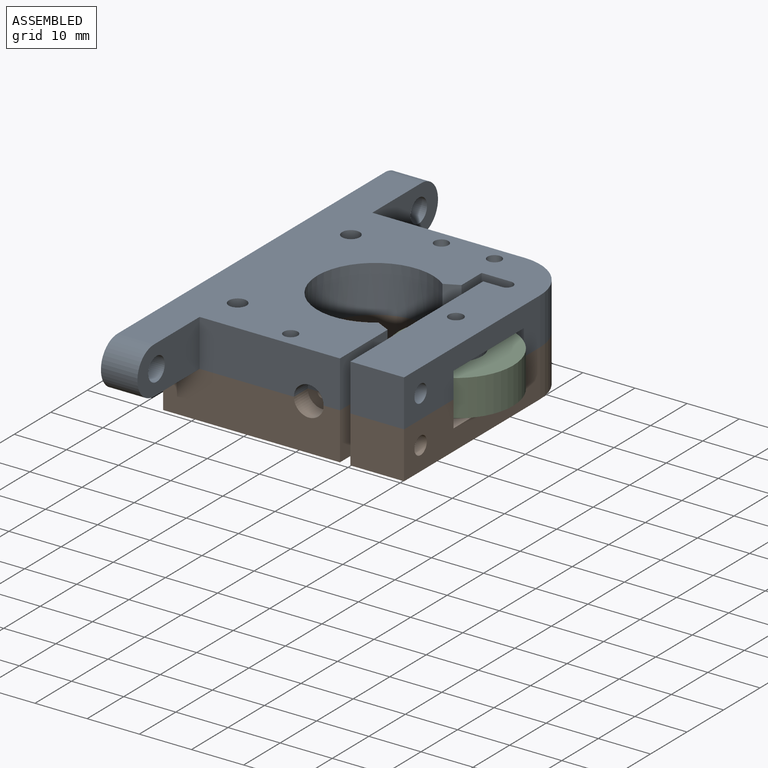
[diagram: assembled view]
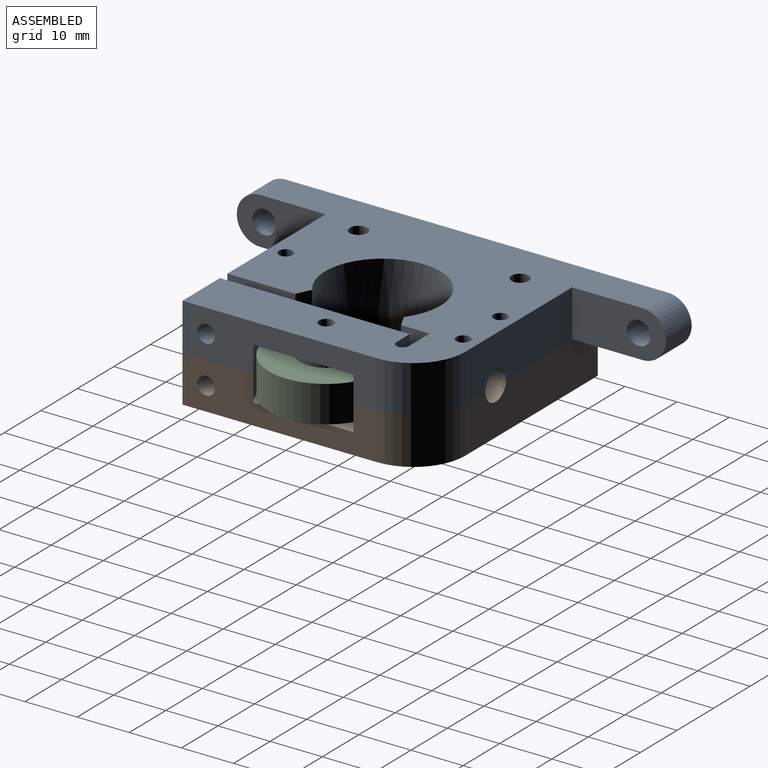
[diagram: assembled view, second angle]
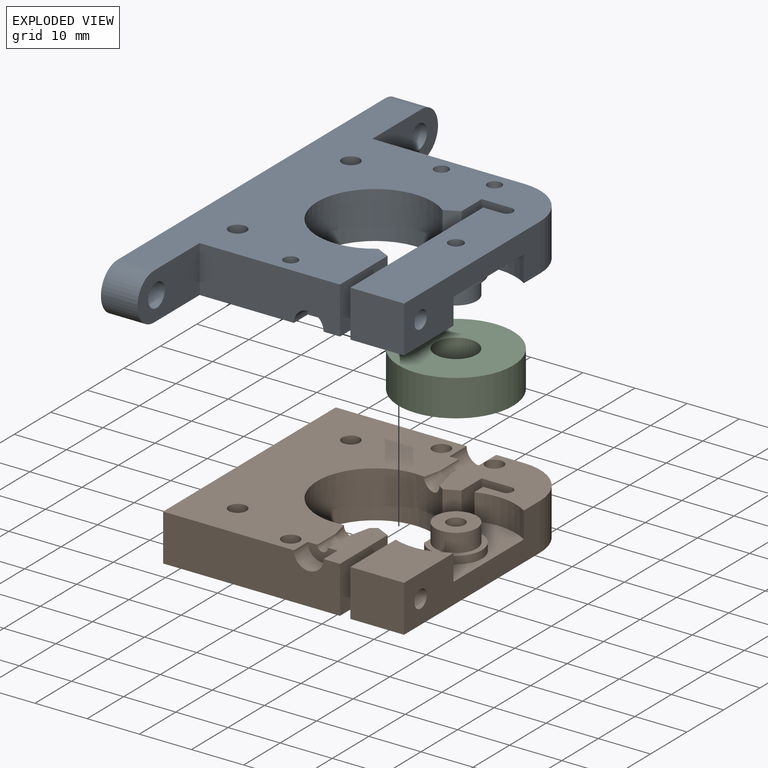
[diagram: exploded view]
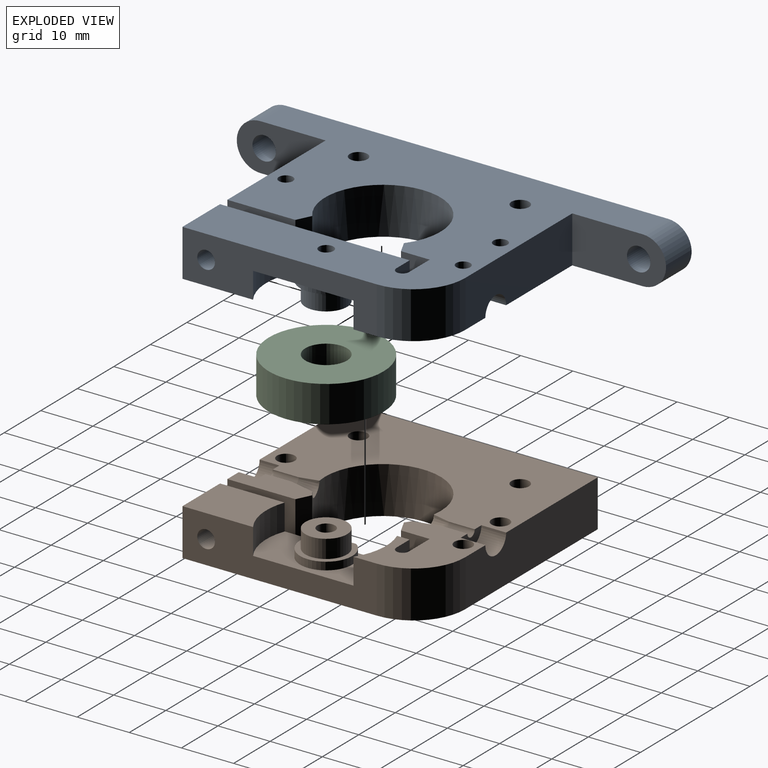
[diagram: exploded view, second angle]
ASSEMBLY  parts=3 mates=2
PART A: 50 faces, bbox 46.2x82.3x9 mm
  f0: plane 73.31x26.93mm, normal (0,0,-1), area 1158.5mm2, adj f3,f8,f9,f10,f16,f17,f21,f22
  f1: plane 14.38x4.98mm, normal (0,0,-1), area 58.7mm2, adj f3,f6,f10,f34,f35,f36,f37,f48
  f2: plane 17.27x15.32mm, normal (0,0,-1), area 174.7mm2, adj f3,f4,f5,f7,f8,f11,f12,f13
  f3: cylinder r=11.1mm len=22.2mm, axis (0,0,-1), area 432.3mm2, adj f0,f1,f2,f19,f33,f36,f48,f49
  f4: plane 36.35x9mm, normal (-1,0,0), area 219.3mm2, adj f2,f13,f14,f18,f19,f23,f24,f25
  f5: plane 37.28x9mm, normal (1,0,0), area 230.1mm2, adj f2,f14,f18,f19,f20,f23,f25,f26
  f6: plane 13.04x9mm, normal (1,0,0), area 111.2mm2, adj f1,f10,f19,f39,f48
  f7: plane 9x5.51mm, normal (1,0,0), area 49.5mm2, adj f2,f11,f19,f49
  f8: plane 29.2x9mm, normal (0,1,0), area 250.1mm2, adj f0,f2,f19,f20,f32,f43
  f9: plane 82.31x9mm, normal (-1,0,0), area 691.6mm2, adj f0,f19,f44,f45,f46,f47
  f10: plane 26.91x9mm, normal (0,-1,0), area 229.4mm2, adj f0,f1,f6,f19,f37,f42
  f11: plane 9x5.65mm, normal (0,-1,0), area 50.9mm2, adj f2,f7,f12,f19
  f12: cylinder r=1.22mm len=9mm, axis (0,0,1), area 34.6mm2, adj f2,f11,f13,f19
  f13: plane 9x3.65mm, normal (0,1,0), area 32.9mm2, adj f2,f4,f12,f19
  f14: plane 10.29x9mm, normal (0,-1,0), area 92.6mm2, adj f4,f5,f18,f19
  f15: cylinder r=1.35mm len=9mm, axis (0,0,1), area 76.3mm2, adj f2,f19
  f16: cylinder r=1.35mm len=9mm, axis (0,0,1), area 76.3mm2, adj f0,f19
  f17: cylinder r=1.35mm len=9mm, axis (0,0,1), area 76.3mm2, adj f0,f19
  f18: plane 13.53x10.29mm, normal (0,0,-1), area 124.8mm2, adj f4,f5,f14,f25
  f19: plane 73.31x46.2mm, normal (0,0,1), area 1829.6mm2, adj f3,f4,f5,f6,f7,f8,f9,f10
  f20: cylinder r=10mm len=10mm, axis (0,0,1), area 141.4mm2, adj f2,f5,f8,f19
  f21: cylinder r=1.7mm len=9mm, axis (0,0,-1), area 96.1mm2, adj f0,f19
  f22: cylinder r=1.7mm len=9mm, axis (0,0,-1), area 96.1mm2, adj f0,f19
  f23: cylinder r=11.5mm len=10.29mm, axis (0,0,-1), area 53.7mm2, adj f2,f4,f5,f26
  f24: cylinder r=5mm len=10mm, axis (0,0,-1), area 37.6mm2, adj f4,f26,f28
  f25: cylinder r=11.5mm len=10.29mm, axis (0,0,-1), area 53.7mm2, adj f4,f5,f18,f26
  f26: plane 23x10.29mm, normal (0,0,-1), area 152.7mm2, adj f4,f5,f23,f24,f25
  f27: cylinder r=4mm len=8mm, axis (0,0,-1), area 88mm2, adj f28,f29
  f28: plane 10x9.02mm, normal (0,0,-1), area 24.3mm2, adj f4,f24,f27
  f29: plane 8x8mm, normal (0,0,-1), area 44.1mm2, adj f27,f41
  f30: plane 5.7x2.85mm, normal (0,1,0), area 11.2mm2, adj f0,f2,f31,f32
  f31: cylinder r=1mm len=4.98mm, axis (0,-1,0), area 15.6mm2, adj f0,f2,f30,f33
  f32: cylinder r=2.85mm len=5.7mm, axis (0,-1,0), area 42.5mm2, adj f0,f2,f8,f30
  f33: cone r=1mm half-angle=13.3deg, axis (0,-1,0), area 19mm2, adj f0,f2,f3,f31
  f34: cylinder r=1mm len=4.98mm, axis (0,-1,0), area 15.6mm2, adj f0,f1,f35,f36
  f35: plane 5.7x2.85mm, normal (0,-1,0), area 11.2mm2, adj f0,f1,f34,f37
  f36: cone r=1mm half-angle=13.3deg, axis (0,1,0), area 19mm2, adj f0,f1,f3,f34
  f37: cylinder r=2.85mm len=5.7mm, axis (0,-1,0), area 34mm2, adj f0,f1,f10,f35
  f38: plane 2.8x2.8mm, normal (1,0,0), area 6.2mm2, adj f39
  f39: cylinder r=1.4mm len=7.71mm, axis (1,0,0), area 67.8mm2, adj f6,f38
  f40: cylinder r=1.7mm len=10.29mm, axis (1,0,0), area 109.9mm2, adj f4,f5
  f41: cylinder r=1.4mm len=9mm, axis (0,0,-1), area 79.2mm2, adj f19,f29
  f42: plane 17.03x9mm, normal (1,0,0), area 128.7mm2, adj f0,f10,f19,f44,f46
  f43: plane 18x9mm, normal (1,0,0), area 137.4mm2, adj f0,f8,f19,f45,f47
  f44: cylinder r=2.25mm len=7mm, axis (1,0,0), area 99mm2, adj f9,f42
  f45: cylinder r=2.25mm len=7mm, axis (1,0,0), area 99mm2, adj f9,f43
  f46: cylinder r=4.5mm len=9mm, axis (1,0,0), area 99mm2, adj f0,f9,f19,f42
  f47: cylinder r=4.5mm len=9mm, axis (-1,0,0), area 99mm2, adj f0,f9,f19,f43
  f48: plane 9x2.71mm, normal (0.44,0.9,0), area 27.2mm2, adj f1,f3,f6,f19
  f49: plane 9x2.71mm, normal (0.44,-0.9,0), area 27.2mm2, adj f2,f3,f7,f19
PART B: 44 faces, bbox 46.2x47.3x9 mm
  f0: plane 47.28x26.93mm, normal (0,0,1), area 969.5mm2, adj f3,f7,f8,f9,f15,f17,f21,f22
  f1: plane 14.38x4.98mm, normal (0,0,1), area 58.7mm2, adj f3,f6,f9,f33,f34,f35,f36,f43
  f2: plane 17.27x15.32mm, normal (0,0,1), area 171.3mm2, adj f3,f4,f7,f10,f11,f12,f13,f16
  f3: cylinder r=11.1mm len=22.2mm, axis (0,0,1), area 432.3mm2, adj f0,f1,f2,f20,f32,f33,f42,f43
  f4: plane 36.35x9mm, normal (-1,0,0), area 219.3mm2, adj f2,f5,f13,f14,f19,f20,f23,f24
  f5: cylinder r=5mm len=10mm, axis (0,0,1), area 37.6mm2, adj f4,f25,f26
  f6: plane 13.04x9mm, normal (1,0,0), area 111.2mm2, adj f1,f9,f20,f38,f43
  f7: plane 36.2x9mm, normal (0,1,0), area 313.1mm2, adj f0,f2,f8,f20,f29,f37
  f8: plane 47.28x9mm, normal (-1,0,0), area 425.5mm2, adj f0,f7,f9,f20
  f9: plane 33.91x9mm, normal (0,-1,0), area 292.4mm2, adj f0,f1,f6,f8,f20,f36
  f10: plane 9x5.51mm, normal (1,0,0), area 49.5mm2, adj f2,f11,f20,f42
  f11: plane 9x5.65mm, normal (0,-1,0), area 50.9mm2, adj f2,f10,f12,f20
  f12: cylinder r=1.22mm len=9mm, axis (0,0,-1), area 34.6mm2, adj f2,f11,f13,f20
  f13: plane 9x3.65mm, normal (0,1,0), area 32.9mm2, adj f2,f4,f12,f20
  f14: plane 10.29x9mm, normal (0,-1,0), area 92.6mm2, adj f4,f18,f19,f20
  f15: cylinder r=1.7mm len=9mm, axis (0,0,-1), area 96.1mm2, adj f0,f20
  f16: cylinder r=1.7mm len=9mm, axis (0,0,-1), area 96.1mm2, adj f2,f20
  f17: cylinder r=1.7mm len=9mm, axis (0,0,-1), area 96.1mm2, adj f0,f20
  f18: plane 37.28x9mm, normal (1,0,0), area 230.1mm2, adj f2,f14,f19,f20,f23,f24,f25,f37
  f19: plane 13.53x10.29mm, normal (0,0,1), area 124.8mm2, adj f4,f14,f18,f24
  f20: plane 47.28x46.2mm, normal (0,0,-1), area 1634.4mm2, adj f3,f4,f6,f7,f8,f9,f10,f11
  f21: cylinder r=1.7mm len=9mm, axis (0,0,1), area 96.1mm2, adj f0,f20
  f22: cylinder r=1.7mm len=9mm, axis (0,0,1), area 96.1mm2, adj f0,f20
  f23: cylinder r=11.5mm len=10.29mm, axis (0,0,1), area 53.7mm2, adj f2,f4,f18,f25
  f24: cylinder r=11.5mm len=10.29mm, axis (0,0,1), area 53.7mm2, adj f4,f18,f19,f25
  f25: plane 23x10.29mm, normal (0,0,1), area 152.7mm2, adj f4,f5,f18,f23,f24
  f26: plane 10x9.02mm, normal (0,0,1), area 24.3mm2, adj f4,f5,f27
  f27: cylinder r=4mm len=8mm, axis (0,0,1), area 88mm2, adj f26,f28
  f28: plane 8x8mm, normal (0,0,1), area 41.2mm2, adj f27,f41
  f29: cylinder r=2.85mm len=5.7mm, axis (0,-1,0), area 42.5mm2, adj f0,f2,f7,f30
  f30: plane 5.7x2.85mm, normal (0,1,0), area 11.2mm2, adj f0,f2,f29,f31
  f31: cylinder r=1mm len=4.98mm, axis (0,-1,0), area 15.6mm2, adj f0,f2,f30,f32
  f32: cone r=1mm half-angle=13.3deg, axis (0,-1,0), area 19mm2, adj f0,f2,f3,f31
  f33: cone r=1mm half-angle=13.3deg, axis (0,1,0), area 19mm2, adj f0,f1,f3,f34
  f34: cylinder r=1mm len=4.98mm, axis (0,-1,0), area 15.6mm2, adj f0,f1,f33,f35
  f35: plane 5.7x2.85mm, normal (0,-1,0), area 11.2mm2, adj f0,f1,f34,f36
  f36: cylinder r=2.85mm len=5.7mm, axis (0,-1,0), area 34mm2, adj f0,f1,f9,f35
  f37: cylinder r=10mm len=10mm, axis (0,0,-1), area 141.4mm2, adj f2,f7,f18,f20
  f38: cylinder r=1.4mm len=7.71mm, axis (1,0,0), area 67.8mm2, adj f6,f39
  f39: plane 2.8x2.8mm, normal (1,0,0), area 6.2mm2, adj f38
  f40: cylinder r=1.7mm len=10.29mm, axis (1,0,0), area 109.9mm2, adj f4,f18
  f41: cylinder r=1.7mm len=9mm, axis (0,0,1), area 96.1mm2, adj f20,f28
  f42: plane 9x2.71mm, normal (0.44,-0.9,0), area 27.2mm2, adj f2,f3,f10,f20
  f43: plane 9x2.71mm, normal (0.44,0.9,0), area 27.2mm2, adj f1,f3,f6,f20
PART C: 4 faces, bbox 22x22x7 mm
  f0: cylinder r=4mm len=8mm, axis (0,0,-1), area 175.9mm2, adj f2,f3
  f1: cylinder r=11mm len=22mm, axis (0,0,-1), area 483.8mm2, adj f2,f3
  f2: plane 22x22mm, normal (0,0,1), area 329.9mm2, adj f0,f1
  f3: plane 22x22mm, normal (0,0,-1), area 329.9mm2, adj f0,f1
PLACE A t=(-37.06,-1.17,34.2)mm
PLACE B t=(-37.06,-1.17,34.2)mm
PLACE C t=(-21.56,4.66,39.7)mm
MATE fastened C.f0 <-> B.f5  axis (0,0,-1) through (-21.56,4.66,39.7)mm
MATE fastened C.f0 <-> A.f23  axis (0,0,1) through (-21.56,4.66,46.7)mm
